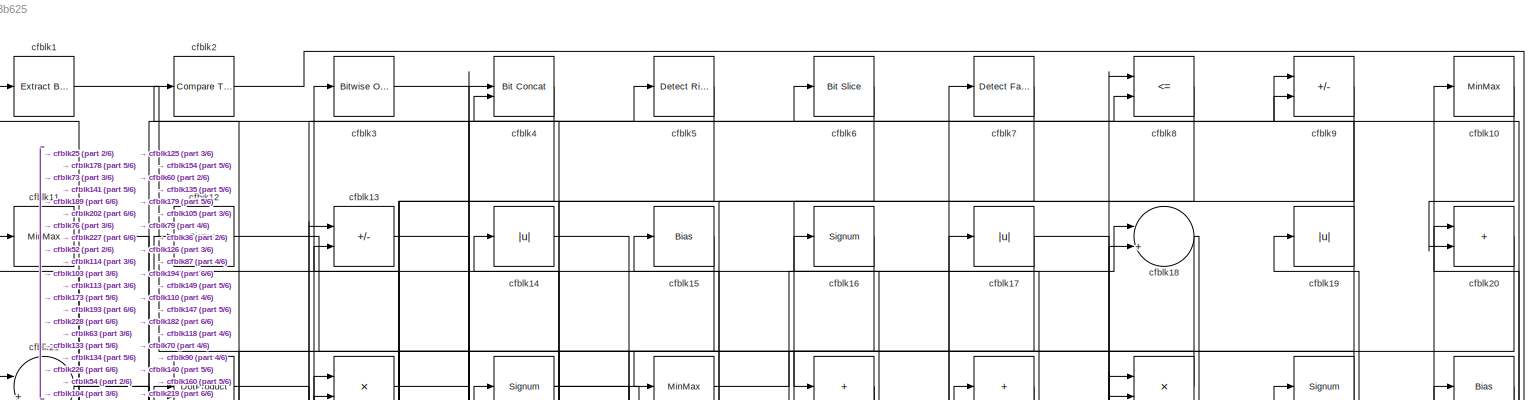
[diagram: root canvas - part 1/6, full width, top band]
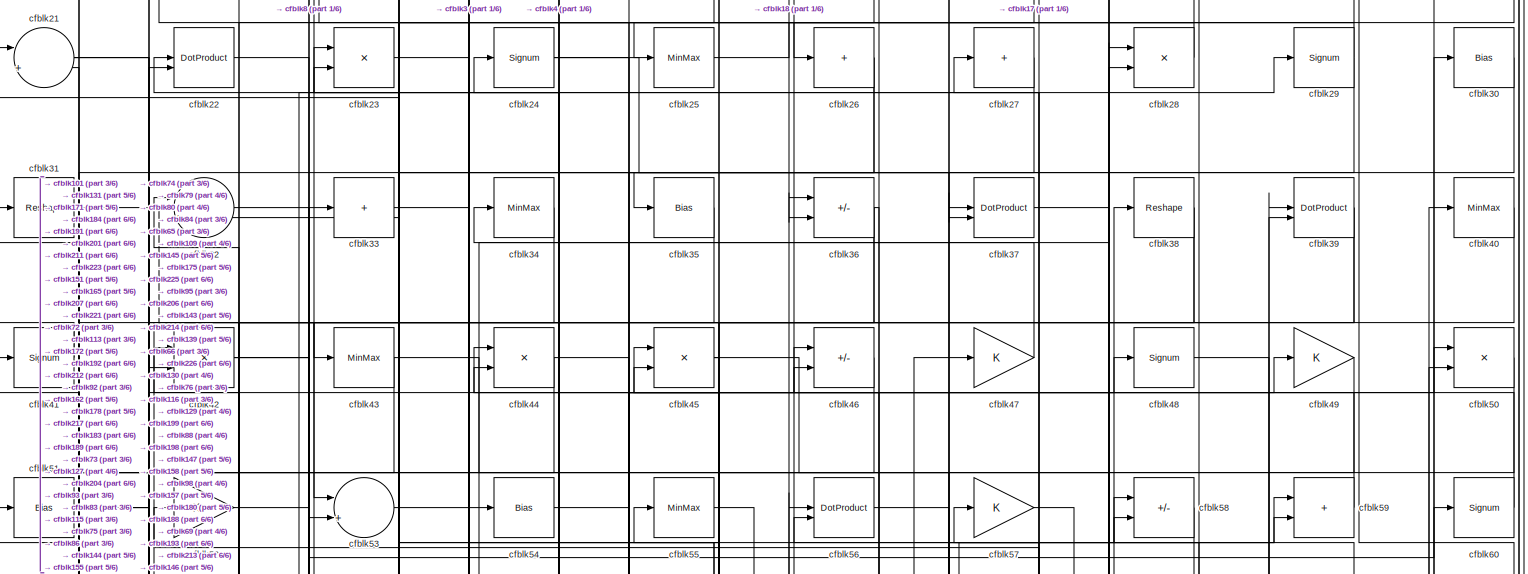
[diagram: root canvas - part 2/6, full width, top band]
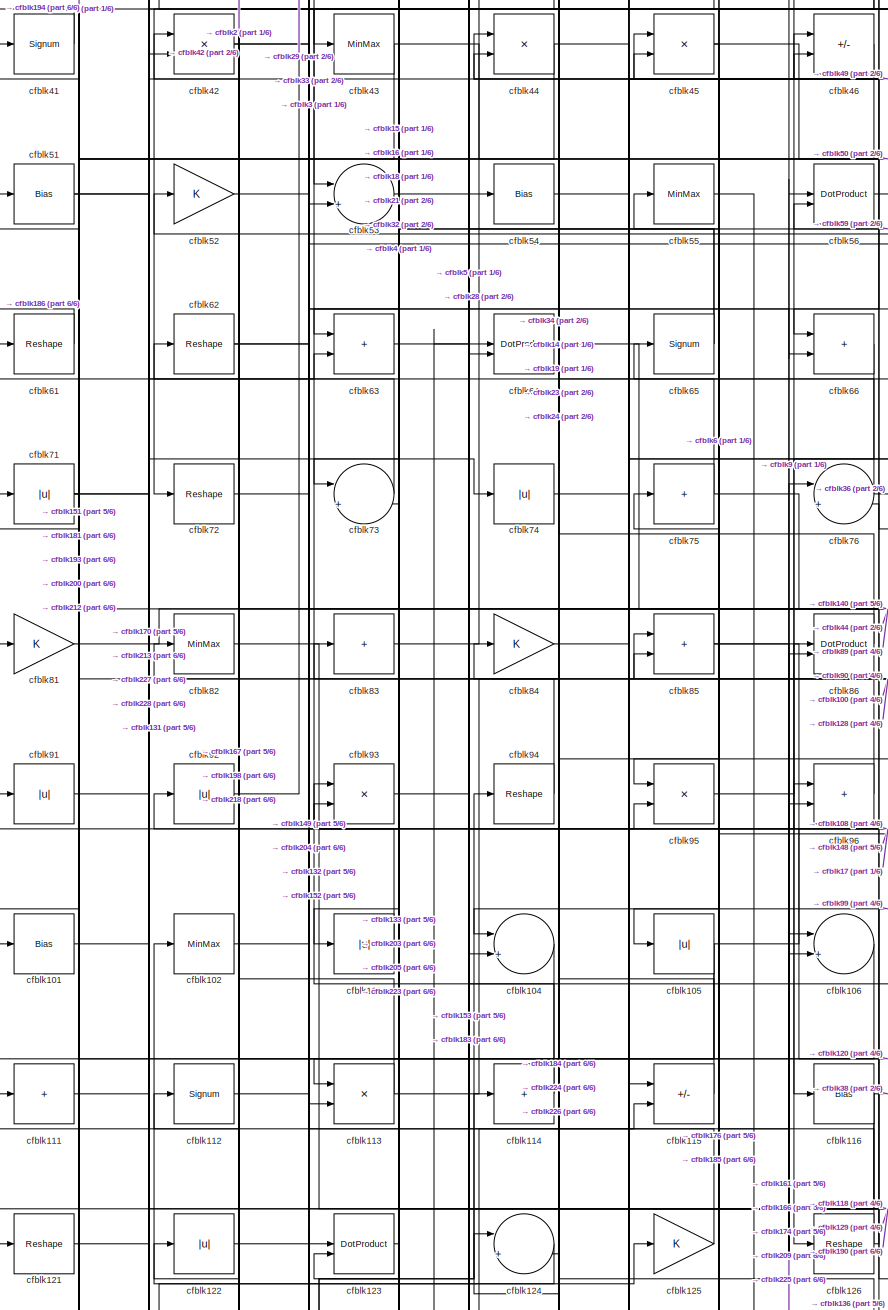
[diagram: root canvas - part 3/6, middle left region]
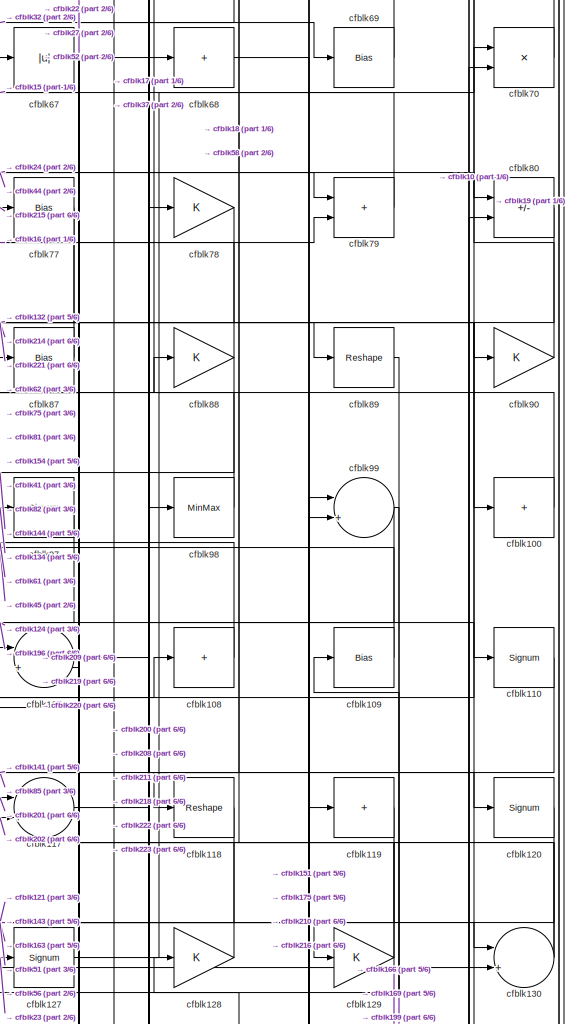
[diagram: root canvas - part 4/6, middle right region]
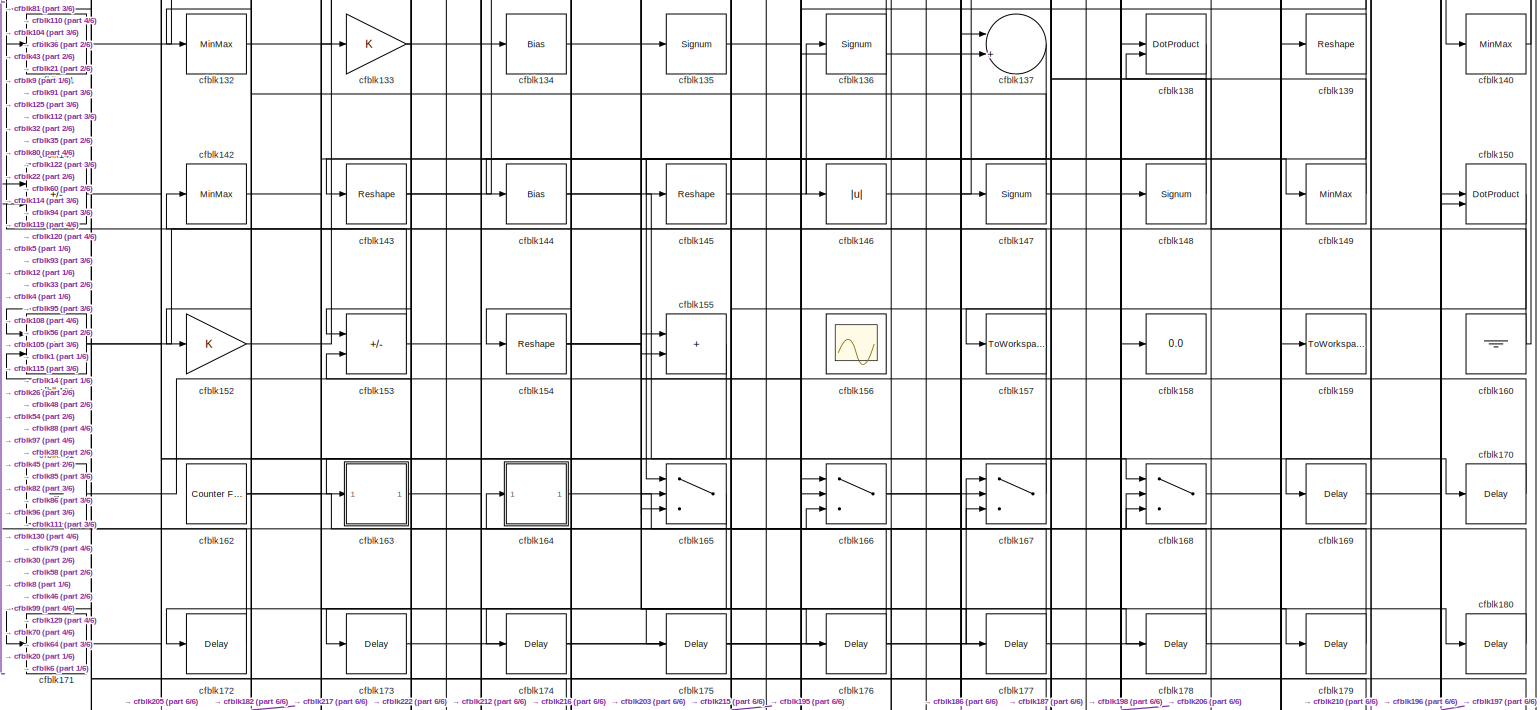
[diagram: root canvas - part 5/6, full width, bottom band]
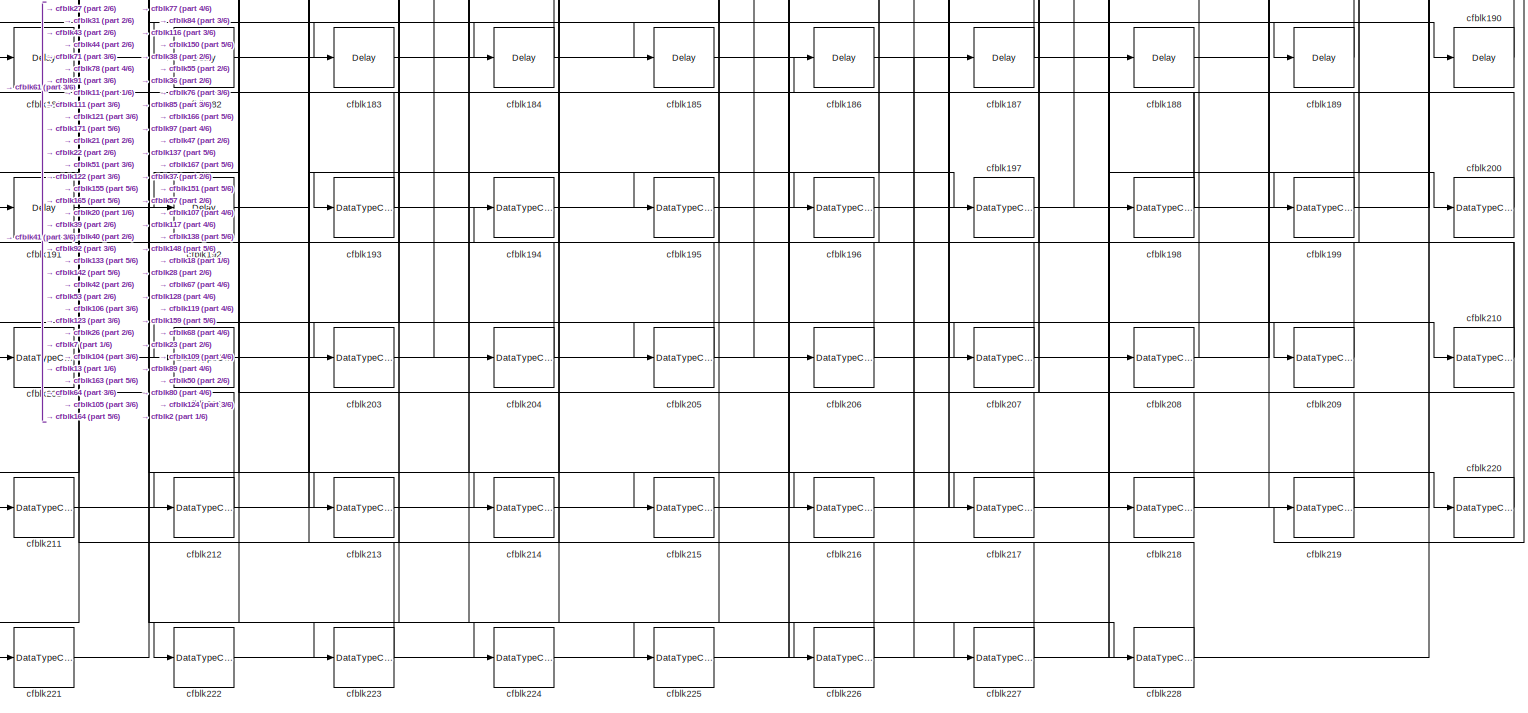
[diagram: root canvas - part 6/6, full width, bottom band]
MODEL slx_37a4bd73b625
KIND model
CONFIG AbsTol = auto
CONFIG EnableMultiTasking = off
CONFIG FixedStep = auto
CONFIG MaxStep = auto
CONFIG MinStep = auto
CONFIG RelTol = 1e-3
CONFIG SampleTimeConstraint = Unconstrained
CONFIG SolverName = VariableStepAuto
CONFIG StartTime = 0.0
CONFIG StopTime = 10.0
BLOCK [Reference] cfblk1  REF=simulink/Logic and Bit
Operations/Extract Bits
  LibrarySourceBlock = hdlsllib/Logic and Bit\nOperations/Extract Bits
  SourceBlock = simulink/Logic and Bit\nOperations/Extract Bits
  SourceType = Extract Bits
BLOCK [MinMax] cfblk10
BLOCK [Sum] cfblk100
  IconShape = rectangular
  Inputs = +
BLOCK [Bias] cfblk101
  Bias = 0.0
  SaturateOnIntegerOverflow = off
BLOCK [MinMax] cfblk102
BLOCK [Abs] cfblk103
  SaturateOnIntegerOverflow = off
BLOCK [Sum] cfblk104
  Inputs = |++
BLOCK [Abs] cfblk105
  SaturateOnIntegerOverflow = off
BLOCK [Sum] cfblk106
  Inputs = |++
BLOCK [Sum] cfblk107
  Inputs = |++
BLOCK [Sum] cfblk108
  IconShape = rectangular
  Inputs = +
BLOCK [Bias] cfblk109
  Bias = 0.0
  SaturateOnIntegerOverflow = off
BLOCK [MinMax] cfblk11
BLOCK [Signum] cfblk110
BLOCK [Sum] cfblk111
  IconShape = rectangular
  Inputs = +
BLOCK [Signum] cfblk112
BLOCK [Product] cfblk113
  Inputs = */
  RndMeth = Zero
  SaturateOnIntegerOverflow = on
BLOCK [Sum] cfblk114
  IconShape = rectangular
  Inputs = +
BLOCK [Sum] cfblk115
  IconShape = rectangular
  Inputs = +-
BLOCK [Bias] cfblk116
  Bias = 0.0
  SaturateOnIntegerOverflow = off
BLOCK [Sum] cfblk117
  Inputs = |++
BLOCK [Reshape] cfblk118
BLOCK [Sum] cfblk119
  IconShape = rectangular
  Inputs = +
BLOCK [Signum] cfblk12
BLOCK [Signum] cfblk120
BLOCK [Reshape] cfblk121
BLOCK [Abs] cfblk122
  SaturateOnIntegerOverflow = off
BLOCK [DotProduct] cfblk123
  OutDataTypeStr = Inherit: Inherit via internal rule
BLOCK [Sum] cfblk124
  Inputs = |++
BLOCK [Gain] cfblk125
BLOCK [Reshape] cfblk126
BLOCK [Signum] cfblk127
BLOCK [Gain] cfblk128
BLOCK [Gain] cfblk129
BLOCK [Sum] cfblk13
  IconShape = rectangular
  Inputs = +-
BLOCK [Sum] cfblk130
  Inputs = |++
BLOCK [Reshape] cfblk131
BLOCK [MinMax] cfblk132
BLOCK [Gain] cfblk133
BLOCK [Bias] cfblk134
  Bias = 0.0
  SaturateOnIntegerOverflow = off
BLOCK [Signum] cfblk135
BLOCK [Signum] cfblk136
BLOCK [Sum] cfblk137
  Inputs = |++
BLOCK [DotProduct] cfblk138
  OutDataTypeStr = Inherit: Inherit via internal rule
BLOCK [Reshape] cfblk139
BLOCK [Abs] cfblk14
  SaturateOnIntegerOverflow = off
BLOCK [MinMax] cfblk140
BLOCK [Sum] cfblk141
  IconShape = rectangular
  Inputs = +-
BLOCK [MinMax] cfblk142
BLOCK [Reshape] cfblk143
BLOCK [Bias] cfblk144
  Bias = 0.0
  SaturateOnIntegerOverflow = off
BLOCK [Reshape] cfblk145
BLOCK [Abs] cfblk146
  SaturateOnIntegerOverflow = off
BLOCK [Signum] cfblk147
BLOCK [Signum] cfblk148
BLOCK [MinMax] cfblk149
BLOCK [Bias] cfblk15
  Bias = 0.0
  SaturateOnIntegerOverflow = off
BLOCK [DotProduct] cfblk150
  OutDataTypeStr = Inherit: Inherit via internal rule
BLOCK [Product] cfblk151
  Inputs = */
  RndMeth = Zero
  SaturateOnIntegerOverflow = on
BLOCK [Gain] cfblk152
BLOCK [Sum] cfblk153
  IconShape = rectangular
  Inputs = +-
BLOCK [Reshape] cfblk154
BLOCK [Sum] cfblk155
  IconShape = rectangular
BLOCK [Scope] cfblk156
  Floating = on
  NumInputPorts = 1
  ScopeSpecificationString = Simulink.scopes.TimeScopeBlockCfg('CurrentConfiguration', extmgr.ConfigurationSet(extmgr.Configuration('Core','General UI',true,'FigureColor',[0.156862745098039 0.156862745098039 0.156862745098039]),extmgr.Configuration('Core','Source UI',true),extmgr.Configuration('Sources','WiredSimulink',true,'DataLoggingVariableName','ScopeData1','DataLoggingSaveFormat','StructureWithTime','DataLoggingLimitDat...<+2713ch>
BLOCK [ToWorkspace] cfblk157
  MaxDataPoints = inf
  SampleTime = -1
  SaveFormat = Timeseries
  VariableName = simout
BLOCK [Display] cfblk158
  Decimation = 1
BLOCK [ToWorkspace] cfblk159
  MaxDataPoints = inf
  SampleTime = -1
  SaveFormat = Timeseries
  VariableName = simout
BLOCK [Signum] cfblk16
BLOCK [Ground] cfblk160
BLOCK [Ground] cfblk161
BLOCK [Reference] cfblk162  REF=hdlsllib/Sources/Counter
Free-Running
  SourceBlock = hdlsllib/Sources/Counter\nFree-Running
  SourceType = Counter Free-Running
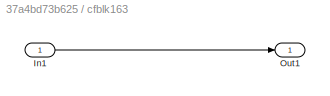
BLOCK [SubSystem] cfblk163
  LibrarySourceBlock = hdlsllib/Ports &\nSubsystems/Subsystem
BLOCK [Inport] cfblk163/In1
BLOCK [Outport] cfblk163/Out1
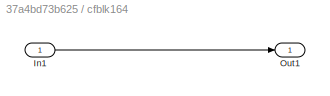
BLOCK [SubSystem] cfblk164
  LibrarySourceBlock = hdlsllib/Ports &\nSubsystems/Subsystem
BLOCK [Inport] cfblk164/In1
BLOCK [Outport] cfblk164/Out1
BLOCK [Switch] cfblk165
  InputSameDT = off
  SaturateOnIntegerOverflow = off
BLOCK [Switch] cfblk166
  InputSameDT = off
  SaturateOnIntegerOverflow = off
BLOCK [Switch] cfblk167
  InputSameDT = off
  SaturateOnIntegerOverflow = off
BLOCK [Switch] cfblk168
  InputSameDT = off
  SaturateOnIntegerOverflow = off
BLOCK [Delay] cfblk169
  InputPortMap = u0
  SampleTime = 1
BLOCK [Abs] cfblk17
  SaturateOnIntegerOverflow = off
BLOCK [Delay] cfblk170
  InputPortMap = u0
  SampleTime = 1
BLOCK [Delay] cfblk171
  InputPortMap = u0
  SampleTime = 1
BLOCK [Delay] cfblk172
  InputPortMap = u0
  SampleTime = 1
BLOCK [Delay] cfblk173
  InputPortMap = u0
  SampleTime = 1
BLOCK [Delay] cfblk174
  InputPortMap = u0
  SampleTime = 1
BLOCK [Delay] cfblk175
  InputPortMap = u0
  SampleTime = 1
BLOCK [Delay] cfblk176
  InputPortMap = u0
  SampleTime = 1
BLOCK [Delay] cfblk177
  InputPortMap = u0
  SampleTime = 1
BLOCK [Delay] cfblk178
  InputPortMap = u0
  SampleTime = 1
BLOCK [Delay] cfblk179
  InputPortMap = u0
  SampleTime = 1
BLOCK [Sum] cfblk18
  Inputs = |++
BLOCK [Delay] cfblk180
  InputPortMap = u0
  SampleTime = 1
BLOCK [Delay] cfblk181
  InputPortMap = u0
  SampleTime = 1
BLOCK [Delay] cfblk182
  InputPortMap = u0
  SampleTime = 1
BLOCK [Delay] cfblk183
  InputPortMap = u0
  SampleTime = 1
BLOCK [Delay] cfblk184
  InputPortMap = u0
  SampleTime = 1
BLOCK [Delay] cfblk185
  InputPortMap = u0
  SampleTime = 1
BLOCK [Delay] cfblk186
  InputPortMap = u0
  SampleTime = 1
BLOCK [Delay] cfblk187
  InputPortMap = u0
  SampleTime = 1
BLOCK [Delay] cfblk188
  InputPortMap = u0
  SampleTime = 1
BLOCK [Delay] cfblk189
  InputPortMap = u0
  SampleTime = 1
BLOCK [Abs] cfblk19
  SaturateOnIntegerOverflow = off
BLOCK [Delay] cfblk190
  InputPortMap = u0
  SampleTime = 1
BLOCK [Delay] cfblk191
  InputPortMap = u0
  SampleTime = 1
BLOCK [Delay] cfblk192
  InputPortMap = u0
  SampleTime = 1
BLOCK [DataTypeConversion] cfblk193
  RndMeth = Floor
  SaturateOnIntegerOverflow = off
BLOCK [DataTypeConversion] cfblk194
  OutDataTypeStr = uint8
  RndMeth = Floor
  SaturateOnIntegerOverflow = off
BLOCK [DataTypeConversion] cfblk195
  OutDataTypeStr = uint8
  RndMeth = Floor
  SaturateOnIntegerOverflow = off
BLOCK [DataTypeConversion] cfblk196
  OutDataTypeStr = uint8
  RndMeth = Floor
  SaturateOnIntegerOverflow = off
BLOCK [DataTypeConversion] cfblk197
  OutDataTypeStr = uint8
  RndMeth = Floor
  SaturateOnIntegerOverflow = off
BLOCK [DataTypeConversion] cfblk198
  RndMeth = Floor
  SaturateOnIntegerOverflow = off
BLOCK [DataTypeConversion] cfblk199
  OutDataTypeStr = uint8
  RndMeth = Floor
  SaturateOnIntegerOverflow = off
BLOCK [Reference] cfblk2  REF=hdlsllib/Logic and Bit
Operations/Compare
To Zero
  SourceBlock = hdlsllib/Logic and Bit\nOperations/Compare\nTo Zero
  SourceType = Compare To Zero
BLOCK [Sum] cfblk20
  IconShape = rectangular
BLOCK [DataTypeConversion] cfblk200
  OutDataTypeStr = uint8
  RndMeth = Floor
  SaturateOnIntegerOverflow = off
BLOCK [DataTypeConversion] cfblk201
  OutDataTypeStr = uint8
  RndMeth = Floor
  SaturateOnIntegerOverflow = off
BLOCK [DataTypeConversion] cfblk202
  OutDataTypeStr = uint8
  RndMeth = Floor
  SaturateOnIntegerOverflow = off
BLOCK [DataTypeConversion] cfblk203
  RndMeth = Floor
  SaturateOnIntegerOverflow = off
BLOCK [DataTypeConversion] cfblk204
  OutDataTypeStr = uint8
  RndMeth = Floor
  SaturateOnIntegerOverflow = off
BLOCK [DataTypeConversion] cfblk205
  OutDataTypeStr = uint8
  RndMeth = Floor
  SaturateOnIntegerOverflow = off
BLOCK [DataTypeConversion] cfblk206
  RndMeth = Floor
  SaturateOnIntegerOverflow = off
BLOCK [DataTypeConversion] cfblk207
  OutDataTypeStr = uint8
  RndMeth = Floor
  SaturateOnIntegerOverflow = off
BLOCK [DataTypeConversion] cfblk208
  OutDataTypeStr = uint8
  RndMeth = Floor
  SaturateOnIntegerOverflow = off
BLOCK [DataTypeConversion] cfblk209
  OutDataTypeStr = uint8
  RndMeth = Floor
  SaturateOnIntegerOverflow = off
BLOCK [Sum] cfblk21
  Inputs = |++
BLOCK [DataTypeConversion] cfblk210
  RndMeth = Floor
  SaturateOnIntegerOverflow = off
BLOCK [DataTypeConversion] cfblk211
  OutDataTypeStr = uint8
  RndMeth = Floor
  SaturateOnIntegerOverflow = off
BLOCK [DataTypeConversion] cfblk212
  RndMeth = Floor
  SaturateOnIntegerOverflow = off
BLOCK [DataTypeConversion] cfblk213
  OutDataTypeStr = uint8
  RndMeth = Floor
  SaturateOnIntegerOverflow = off
BLOCK [DataTypeConversion] cfblk214
  RndMeth = Floor
  SaturateOnIntegerOverflow = off
BLOCK [DataTypeConversion] cfblk215
  OutDataTypeStr = uint8
  RndMeth = Floor
  SaturateOnIntegerOverflow = off
BLOCK [DataTypeConversion] cfblk216
  RndMeth = Floor
  SaturateOnIntegerOverflow = off
BLOCK [DataTypeConversion] cfblk217
  OutDataTypeStr = uint8
  RndMeth = Floor
  SaturateOnIntegerOverflow = off
BLOCK [DataTypeConversion] cfblk218
  OutDataTypeStr = uint8
  RndMeth = Floor
  SaturateOnIntegerOverflow = off
BLOCK [DataTypeConversion] cfblk219
  OutDataTypeStr = uint8
  RndMeth = Floor
  SaturateOnIntegerOverflow = off
BLOCK [DotProduct] cfblk22
  OutDataTypeStr = Inherit: Inherit via internal rule
BLOCK [DataTypeConversion] cfblk220
  OutDataTypeStr = uint8
  RndMeth = Floor
  SaturateOnIntegerOverflow = off
BLOCK [DataTypeConversion] cfblk221
  OutDataTypeStr = uint8
  RndMeth = Floor
  SaturateOnIntegerOverflow = off
BLOCK [DataTypeConversion] cfblk222
  OutDataTypeStr = uint8
  RndMeth = Floor
  SaturateOnIntegerOverflow = off
BLOCK [DataTypeConversion] cfblk223
  RndMeth = Floor
  SaturateOnIntegerOverflow = off
BLOCK [DataTypeConversion] cfblk224
  OutDataTypeStr = uint8
  RndMeth = Floor
  SaturateOnIntegerOverflow = off
BLOCK [DataTypeConversion] cfblk225
  OutDataTypeStr = uint8
  RndMeth = Floor
  SaturateOnIntegerOverflow = off
BLOCK [DataTypeConversion] cfblk226
  RndMeth = Floor
  SaturateOnIntegerOverflow = off
BLOCK [DataTypeConversion] cfblk227
  OutDataTypeStr = uint8
  RndMeth = Floor
  SaturateOnIntegerOverflow = off
BLOCK [DataTypeConversion] cfblk228
  OutDataTypeStr = uint8
  RndMeth = Floor
  SaturateOnIntegerOverflow = off
BLOCK [Product] cfblk23
  Inputs = */
  RndMeth = Zero
  SaturateOnIntegerOverflow = on
BLOCK [Signum] cfblk24
BLOCK [MinMax] cfblk25
BLOCK [Sum] cfblk26
  IconShape = rectangular
  Inputs = +
BLOCK [Sum] cfblk27
  IconShape = rectangular
  Inputs = +
BLOCK [Product] cfblk28
  Inputs = */
  RndMeth = Zero
  SaturateOnIntegerOverflow = on
BLOCK [Signum] cfblk29
BLOCK [Reference] cfblk3  REF=simulink/Logic and Bit
Operations/Bitwise
Operator
  LibrarySourceBlock = hdlsllib/Logic and Bit\nOperations/Bitwise\nOperator
  SourceBlock = simulink/Logic and Bit\nOperations/Bitwise\nOperator
  SourceType = Bitwise Operator
BLOCK [Bias] cfblk30
  Bias = 0.0
  SaturateOnIntegerOverflow = off
BLOCK [Reshape] cfblk31
BLOCK [Sum] cfblk32
  Inputs = |++
BLOCK [Sum] cfblk33
  IconShape = rectangular
  Inputs = +
BLOCK [MinMax] cfblk34
BLOCK [Bias] cfblk35
  Bias = 0.0
  SaturateOnIntegerOverflow = off
BLOCK [Sum] cfblk36
  IconShape = rectangular
  Inputs = +-
BLOCK [DotProduct] cfblk37
  OutDataTypeStr = Inherit: Inherit via internal rule
BLOCK [Reshape] cfblk38
BLOCK [DotProduct] cfblk39
  OutDataTypeStr = Inherit: Inherit via internal rule
BLOCK [Reference] cfblk4  REF=hdlsllib/Logic and Bit
Operations/Bit Concat
  SourceBlock = hdlsllib/Logic and Bit\nOperations/Bit Concat
  SourceType = Bit Concat
BLOCK [MinMax] cfblk40
BLOCK [Signum] cfblk41
BLOCK [Product] cfblk42
  Inputs = */
  RndMeth = Zero
  SaturateOnIntegerOverflow = on
BLOCK [MinMax] cfblk43
BLOCK [Product] cfblk44
  Inputs = */
  RndMeth = Zero
  SaturateOnIntegerOverflow = on
BLOCK [Product] cfblk45
  Inputs = */
  RndMeth = Zero
  SaturateOnIntegerOverflow = on
BLOCK [Sum] cfblk46
  IconShape = rectangular
  Inputs = +-
BLOCK [Gain] cfblk47
BLOCK [Signum] cfblk48
BLOCK [Gain] cfblk49
BLOCK [Reference] cfblk5  REF=hdlsllib/Logic and Bit
Operations/Detect Rise
Positive
  SourceBlock = hdlsllib/Logic and Bit\nOperations/Detect Rise\nPositive
  SourceType = Detect Rise Positive
BLOCK [Product] cfblk50
  Inputs = */
  RndMeth = Zero
  SaturateOnIntegerOverflow = on
BLOCK [Bias] cfblk51
  Bias = 0.0
  SaturateOnIntegerOverflow = off
BLOCK [Gain] cfblk52
BLOCK [Sum] cfblk53
  Inputs = |++
BLOCK [Bias] cfblk54
  Bias = 0.0
  SaturateOnIntegerOverflow = off
BLOCK [MinMax] cfblk55
BLOCK [DotProduct] cfblk56
  OutDataTypeStr = Inherit: Inherit via internal rule
BLOCK [Gain] cfblk57
BLOCK [Sum] cfblk58
  IconShape = rectangular
  Inputs = +-
BLOCK [Sum] cfblk59
  IconShape = rectangular
BLOCK [Reference] cfblk6  REF=hdlsllib/Logic and Bit
Operations/Bit Slice
  SourceBlock = hdlsllib/Logic and Bit\nOperations/Bit Slice
  SourceType = Bit Slice
BLOCK [Signum] cfblk60
BLOCK [Reshape] cfblk61
BLOCK [Reshape] cfblk62
BLOCK [Sum] cfblk63
  IconShape = rectangular
BLOCK [DotProduct] cfblk64
  OutDataTypeStr = Inherit: Inherit via internal rule
BLOCK [Signum] cfblk65
BLOCK [Sum] cfblk66
  IconShape = rectangular
BLOCK [Abs] cfblk67
  SaturateOnIntegerOverflow = off
BLOCK [Sum] cfblk68
  IconShape = rectangular
  Inputs = +
BLOCK [Bias] cfblk69
  Bias = 0.0
  SaturateOnIntegerOverflow = off
BLOCK [Reference] cfblk7  REF=hdlsllib/Logic and Bit
Operations/Detect Fall
Nonpositive
  SourceBlock = hdlsllib/Logic and Bit\nOperations/Detect Fall\nNonpositive
  SourceType = Detect Fall Nonpositive
BLOCK [Product] cfblk70
  Inputs = */
  RndMeth = Zero
  SaturateOnIntegerOverflow = on
BLOCK [Abs] cfblk71
  SaturateOnIntegerOverflow = off
BLOCK [Reshape] cfblk72
BLOCK [Sum] cfblk73
  Inputs = |++
BLOCK [Abs] cfblk74
  SaturateOnIntegerOverflow = off
BLOCK [Sum] cfblk75
  IconShape = rectangular
  Inputs = +
BLOCK [Sum] cfblk76
  Inputs = |++
BLOCK [Bias] cfblk77
  Bias = 0.0
  SaturateOnIntegerOverflow = off
BLOCK [Gain] cfblk78
BLOCK [Sum] cfblk79
  IconShape = rectangular
BLOCK [RelationalOperator] cfblk8
  InputSameDT = off
  Operator = <=
  OutDataTypeStr = boolean
BLOCK [Sum] cfblk80
  IconShape = rectangular
  Inputs = +-
BLOCK [Gain] cfblk81
BLOCK [MinMax] cfblk82
BLOCK [Sum] cfblk83
  IconShape = rectangular
  Inputs = +
BLOCK [Gain] cfblk84
BLOCK [Sum] cfblk85
  IconShape = rectangular
BLOCK [DotProduct] cfblk86
  OutDataTypeStr = Inherit: Inherit via internal rule
BLOCK [Bias] cfblk87
  Bias = 0.0
  SaturateOnIntegerOverflow = off
BLOCK [Gain] cfblk88
BLOCK [Reshape] cfblk89
BLOCK [Sum] cfblk9
  IconShape = rectangular
  Inputs = +-
BLOCK [Gain] cfblk90
BLOCK [Abs] cfblk91
  SaturateOnIntegerOverflow = off
BLOCK [Abs] cfblk92
  SaturateOnIntegerOverflow = off
BLOCK [Product] cfblk93
  Inputs = */
  RndMeth = Zero
  SaturateOnIntegerOverflow = on
BLOCK [Reshape] cfblk94
BLOCK [Product] cfblk95
  Inputs = */
  RndMeth = Zero
  SaturateOnIntegerOverflow = on
BLOCK [Sum] cfblk96
  IconShape = rectangular
BLOCK [Signum] cfblk97
BLOCK [MinMax] cfblk98
BLOCK [Sum] cfblk99
  Inputs = |++
LINE cfblk100:1 -> cfblk41:1
LINE cfblk101:1 -> cfblk63:2
LINE cfblk102:1 -> cfblk96:1
LINE cfblk103:1 -> cfblk62:1
LINE cfblk104:1 -> cfblk151:1
NET cfblk105:1 -> cfblk152:1, cfblk17:1, cfblk224:1
LINE cfblk106:1 -> cfblk223:1
LINE cfblk107:1 -> cfblk218:1
LINE cfblk108:1 -> cfblk61:1
LINE cfblk109:1 -> cfblk45:1
LINE cfblk10:1 -> cfblk20:2
LINE cfblk110:1 -> cfblk141:2
LINE cfblk111:1 -> cfblk227:1
LINE cfblk112:1 -> cfblk115:2
NET cfblk113:1 -> cfblk42:1, cfblk85:1
LINE cfblk114:1 -> cfblk3:1
LINE cfblk115:1 -> cfblk23:1
NET cfblk116:1 -> cfblk184:1, cfblk185:1, cfblk38:1
LINE cfblk117:1 -> cfblk200:1
LINE cfblk118:1 -> cfblk121:1
LINE cfblk119:1 -> cfblk143:1
LINE cfblk11:1 -> cfblk189:1
LINE cfblk120:1 -> cfblk163:1
LINE cfblk121:1 -> cfblk213:1
LINE cfblk122:1 -> cfblk149:1
LINE cfblk123:1 -> cfblk203:1
LINE cfblk124:1 -> cfblk102:1
LINE cfblk125:1 -> cfblk14:1
NET cfblk126:1 -> cfblk75:1, cfblk76:2
LINE cfblk127:1 -> cfblk70:1
LINE cfblk128:1 -> cfblk82:1
NET cfblk129:1 -> cfblk166:2, cfblk22:1, cfblk87:1
LINE cfblk12:1 -> cfblk134:1
NET cfblk130:1 -> cfblk52:1, cfblk58:2
LINE cfblk131:1 -> cfblk125:1
LINE cfblk132:1 -> cfblk94:1
NET cfblk133:1 -> cfblk4:1, cfblk93:2
LINE cfblk134:1 -> cfblk97:1
LINE cfblk135:1 -> cfblk137:2
NET cfblk136:1 -> cfblk111:1, cfblk174:1
LINE cfblk137:1 -> cfblk153:1
LINE cfblk138:1 -> cfblk165:1
NET cfblk139:1 -> cfblk155:2, cfblk46:1
LINE cfblk13:1 -> cfblk226:1
LINE cfblk140:1 -> cfblk6:1
LINE cfblk141:1 -> cfblk9:1
LINE cfblk142:1 -> cfblk216:1
NET cfblk143:1 -> cfblk108:1, cfblk56:1
NET cfblk144:1 -> cfblk168:1, cfblk48:1
LINE cfblk145:1 -> cfblk136:1
LINE cfblk146:1 -> cfblk30:1
NET cfblk147:1 -> cfblk32:1, cfblk8:1
LINE cfblk148:1 -> cfblk93:1
LINE cfblk149:1 -> cfblk12:1
LINE cfblk14:1 -> cfblk179:1
LINE cfblk150:1 -> cfblk195:1
NET cfblk151:1 -> cfblk46:2, cfblk99:1
LINE cfblk152:1 -> cfblk114:1
NET cfblk153:1 -> cfblk81:1, cfblk95:2
NET cfblk154:1 -> cfblk176:1, cfblk177:1, cfblk88:1
LINE cfblk155:1 -> cfblk222:1
LINE cfblk15:1 -> cfblk63:1
NET cfblk160:1 -> cfblk138:2, cfblk20:1
LINE cfblk161:1 -> cfblk86:2
NET cfblk162:1 -> cfblk167:1, cfblk60:1
LINE cfblk163/In1:1 -> cfblk163/Out1:1
LINE cfblk163:1 -> cfblk215:1
LINE cfblk164/In1:1 -> cfblk164/Out1:1
LINE cfblk164:1 -> cfblk168:2
LINE cfblk165:1 -> cfblk182:1
NET cfblk166:1 -> cfblk130:2, cfblk79:2
LINE cfblk167:1 -> cfblk112:1
LINE cfblk168:1 -> cfblk139:1
LINE cfblk169:1 -> cfblk70:2
LINE cfblk16:1 -> cfblk73:1
LINE cfblk170:1 -> cfblk115:1
LINE cfblk171:1 -> cfblk205:1
LINE cfblk172:1 -> cfblk141:1
LINE cfblk173:1 -> cfblk167:3
LINE cfblk174:1 -> cfblk96:2
LINE cfblk175:1 -> cfblk99:2
LINE cfblk176:1 -> cfblk85:2
LINE cfblk177:1 -> cfblk153:2
LINE cfblk178:1 -> cfblk1:1
LINE cfblk179:1 -> cfblk168:3
NET cfblk17:1 -> cfblk110:1, cfblk36:2
LINE cfblk180:1 -> cfblk45:2
LINE cfblk181:1 -> cfblk64:2
LINE cfblk182:1 -> cfblk18:2
LINE cfblk183:1 -> cfblk104:2
LINE cfblk184:1 -> cfblk21:2
LINE cfblk185:1 -> cfblk220:1
LINE cfblk186:1 -> cfblk137:1
LINE cfblk187:1 -> cfblk151:2
LINE cfblk188:1 -> cfblk39:2
LINE cfblk189:1 -> cfblk23:2
NET cfblk18:1 -> cfblk113:1, cfblk118:1
LINE cfblk190:1 -> cfblk124:1
LINE cfblk191:1 -> cfblk53:2
LINE cfblk192:1 -> cfblk197:1
NET cfblk193:1 -> cfblk50:2, cfblk76:1, cfblk91:1
LINE cfblk194:1 -> cfblk7:1
LINE cfblk195:1 -> cfblk167:2
LINE cfblk196:1 -> cfblk150:1
LINE cfblk197:1 -> cfblk150:2
NET cfblk198:1 -> cfblk122:1, cfblk138:1
LINE cfblk199:1 -> cfblk57:1
NET cfblk19:1 -> cfblk104:1, cfblk9:2
LINE cfblk1:1 -> cfblk135:1
LINE cfblk200:1 -> cfblk71:1
LINE cfblk201:1 -> cfblk117:1
LINE cfblk202:1 -> cfblk117:2
NET cfblk203:1 -> cfblk159:1, cfblk64:1
LINE cfblk204:1 -> cfblk123:1
LINE cfblk205:1 -> cfblk123:2
NET cfblk206:1 -> cfblk148:1, cfblk164:1, cfblk39:1
LINE cfblk207:1 -> cfblk55:1
LINE cfblk208:1 -> cfblk128:1
LINE cfblk209:1 -> cfblk67:1
LINE cfblk20:1 -> cfblk202:1
NET cfblk210:1 -> cfblk109:1, cfblk166:3
LINE cfblk211:1 -> cfblk68:1
NET cfblk212:1 -> cfblk133:1, cfblk51:1
LINE cfblk213:1 -> cfblk40:1
NET cfblk214:1 -> cfblk36:1, cfblk37:1
LINE cfblk215:1 -> cfblk77:1
NET cfblk216:1 -> cfblk119:1, cfblk187:1, cfblk188:1
LINE cfblk217:1 -> cfblk142:1
LINE cfblk218:1 -> cfblk92:1
LINE cfblk219:1 -> cfblk107:1
NET cfblk21:1 -> cfblk165:3, cfblk207:1
LINE cfblk220:1 -> cfblk107:2
LINE cfblk221:1 -> cfblk22:2
LINE cfblk222:1 -> cfblk78:1
NET cfblk223:1 -> cfblk28:2, cfblk31:1, cfblk80:2
LINE cfblk224:1 -> cfblk106:1
LINE cfblk225:1 -> cfblk106:2
NET cfblk226:1 -> cfblk47:1, cfblk84:1
LINE cfblk227:1 -> cfblk13:1
LINE cfblk228:1 -> cfblk13:2
LINE cfblk22:1 -> cfblk178:1
LINE cfblk23:1 -> cfblk127:1
NET cfblk24:1 -> cfblk37:2, cfblk79:1
LINE cfblk25:1 -> cfblk18:1
NET cfblk26:1 -> cfblk165:2, cfblk183:1
LINE cfblk27:1 -> cfblk201:1
LINE cfblk28:1 -> cfblk26:1
NET cfblk29:1 -> cfblk25:1, cfblk73:2
LINE cfblk2:1 -> cfblk219:1
LINE cfblk30:1 -> cfblk35:1
LINE cfblk31:1 -> cfblk43:1
LINE cfblk32:1 -> cfblk69:1
LINE cfblk33:1 -> cfblk146:1
LINE cfblk34:1 -> cfblk72:1
LINE cfblk35:1 -> cfblk172:1
NET cfblk36:1 -> cfblk171:1, cfblk42:2, cfblk66:1
LINE cfblk37:1 -> cfblk98:1
NET cfblk38:1 -> cfblk145:1, cfblk225:1
NET cfblk39:1 -> cfblk192:1, cfblk53:1
LINE cfblk3:1 -> cfblk54:1
LINE cfblk40:1 -> cfblk212:1
LINE cfblk41:1 -> cfblk194:1
NET cfblk42:1 -> cfblk217:1, cfblk66:2
NET cfblk43:1 -> cfblk158:1, cfblk211:1
NET cfblk44:1 -> cfblk191:1, cfblk80:1
NET cfblk45:1 -> cfblk147:1, cfblk175:1
LINE cfblk46:1 -> cfblk131:1
LINE cfblk47:1 -> cfblk34:1
LINE cfblk48:1 -> cfblk180:1
LINE cfblk49:1 -> cfblk95:1
LINE cfblk4:1 -> cfblk103:1
LINE cfblk50:1 -> cfblk101:1
NET cfblk51:1 -> cfblk129:1, cfblk190:1
LINE cfblk52:1 -> cfblk8:2
LINE cfblk53:1 -> cfblk204:1
LINE cfblk54:1 -> cfblk155:1
LINE cfblk55:1 -> cfblk206:1
LINE cfblk56:1 -> cfblk130:1
LINE cfblk57:1 -> cfblk198:1
LINE cfblk58:1 -> cfblk157:1
LINE cfblk59:1 -> cfblk44:1
LINE cfblk5:1 -> cfblk173:1
LINE cfblk60:1 -> cfblk4:2
LINE cfblk61:1 -> cfblk186:1
NET cfblk62:1 -> cfblk113:2, cfblk90:1
LINE cfblk63:1 -> cfblk5:1
LINE cfblk64:1 -> cfblk140:1
NET cfblk65:1 -> cfblk21:1, cfblk32:2
LINE cfblk66:1 -> cfblk116:1
LINE cfblk67:1 -> cfblk208:1
LINE cfblk68:1 -> cfblk210:1
LINE cfblk69:1 -> cfblk56:2
LINE cfblk6:1 -> cfblk105:1
LINE cfblk70:1 -> cfblk19:1
NET cfblk71:1 -> cfblk181:1, cfblk228:1, cfblk74:1
LINE cfblk72:1 -> cfblk33:1
LINE cfblk73:1 -> cfblk11:1
LINE cfblk74:1 -> cfblk50:1
NET cfblk75:1 -> cfblk100:1, cfblk44:2
NET cfblk76:1 -> cfblk2:1, cfblk59:2
LINE cfblk77:1 -> cfblk214:1
LINE cfblk78:1 -> cfblk221:1
LINE cfblk79:1 -> cfblk15:1
LINE cfblk7:1 -> cfblk193:1
LINE cfblk80:1 -> cfblk132:1
LINE cfblk81:1 -> cfblk89:1
LINE cfblk82:1 -> cfblk166:1
LINE cfblk83:1 -> cfblk28:1
LINE cfblk84:1 -> cfblk49:1
NET cfblk85:1 -> cfblk120:1, cfblk209:1
LINE cfblk86:1 -> cfblk24:1
LINE cfblk87:1 -> cfblk16:1
NET cfblk88:1 -> cfblk144:1, cfblk27:1
LINE cfblk89:1 -> cfblk199:1
LINE cfblk8:1 -> cfblk154:1
LINE cfblk90:1 -> cfblk10:1
LINE cfblk91:1 -> cfblk170:1
LINE cfblk92:1 -> cfblk29:1
LINE cfblk93:1 -> cfblk59:1
LINE cfblk94:1 -> cfblk83:1
LINE cfblk95:1 -> cfblk86:1
LINE cfblk96:1 -> cfblk65:1
LINE cfblk97:1 -> cfblk196:1
LINE cfblk98:1 -> cfblk58:1
NET cfblk99:1 -> cfblk124:2, cfblk169:1
LINE cfblk9:1 -> cfblk126:1
note: NET lines group one-source signal fan-out (src -> all destinations, sorted); 1:1 wires keep LINE
